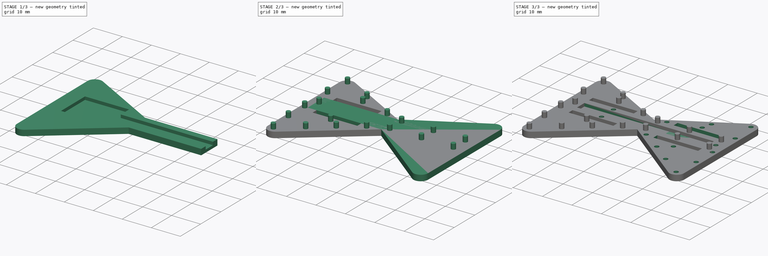
[diagram: build sequence overview — one tinted view per stage of 3, left to right]
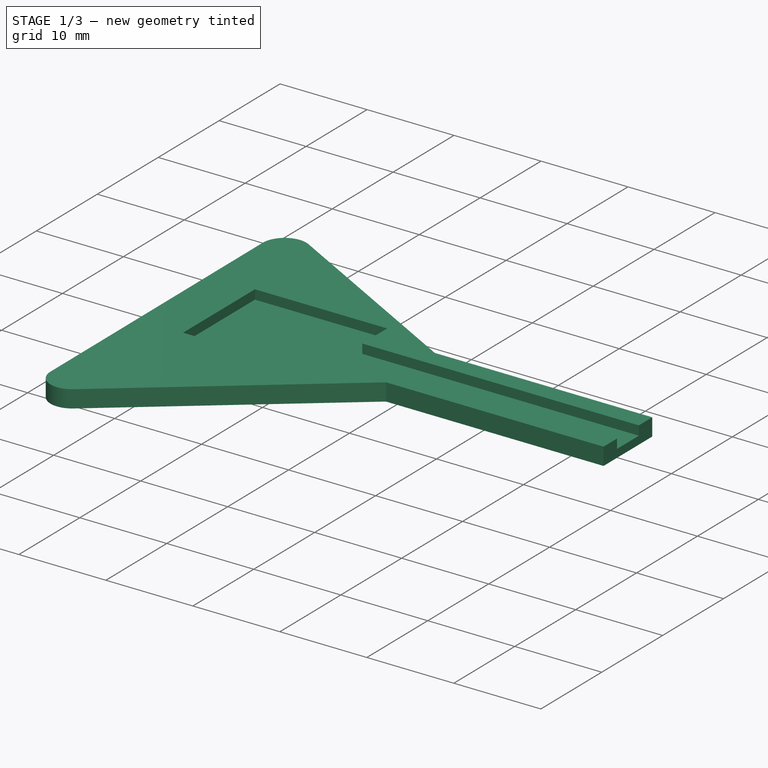
[diagram: stage 1 of 3 — iso view after this stage's code; geometry added in this stage tinted green]
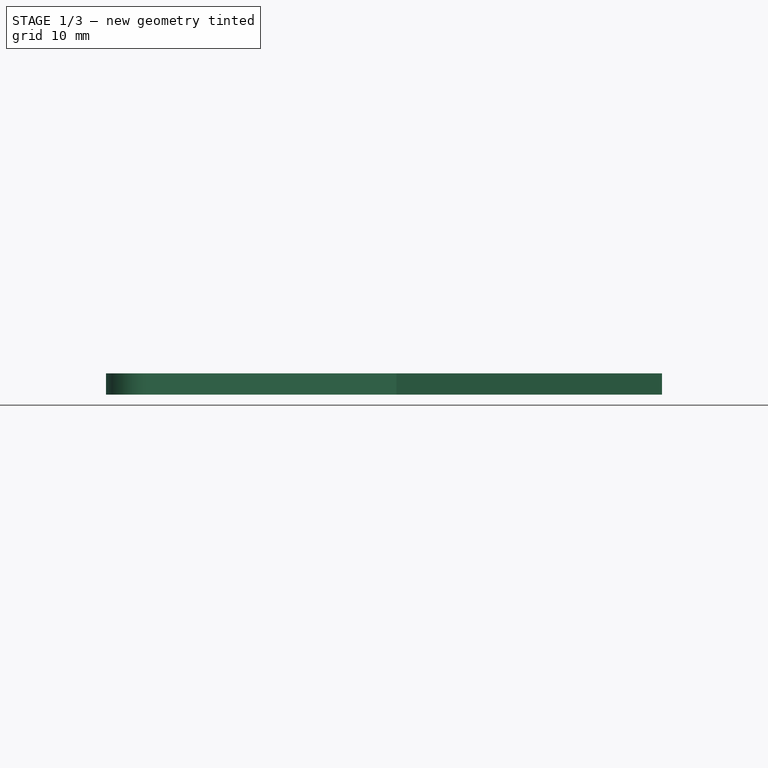
[diagram: stage 1 of 3 — front view after this stage's code; geometry added in this stage tinted green]
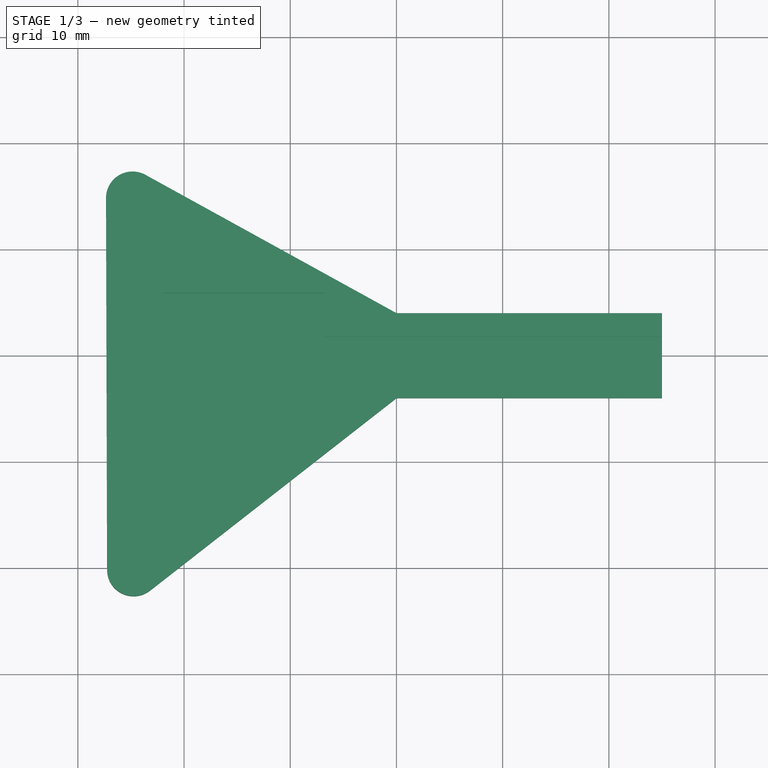
[diagram: stage 1 of 3 — top view after this stage's code; geometry added in this stage tinted green]
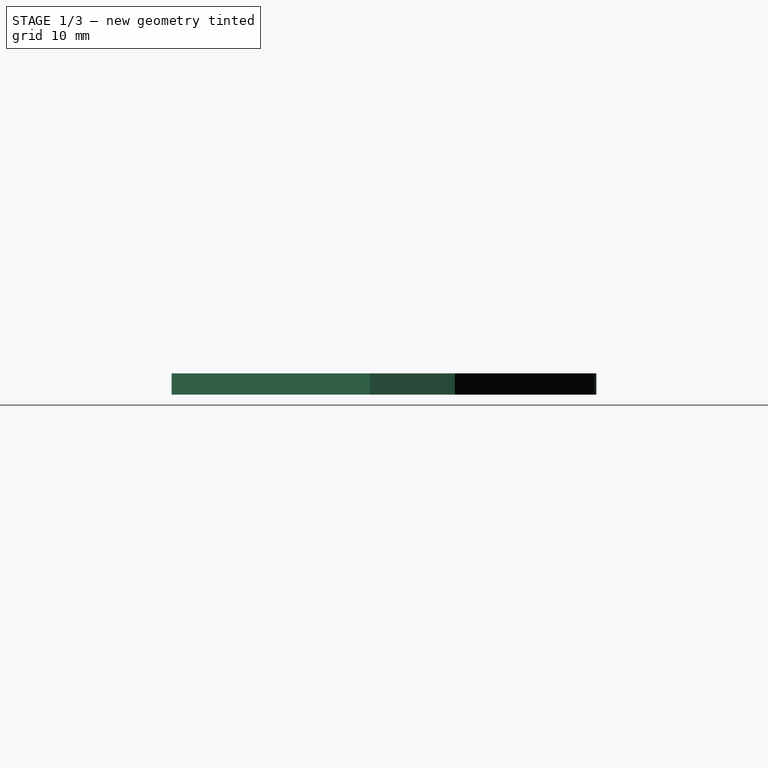
[diagram: stage 1 of 3 — right view after this stage's code; geometry added in this stage tinted green]
FCSTD DOCUMENT  (FreeCAD 0.21R33771 (Git))
Label: Key1
License: All rights reserved
LicenseURL: http://en.wikipedia.org/wiki/All_rights_reserved
objects: Sketcher::SketchObject×6, PartDesign::Pad×3, PartDesign::Pocket×3, PartDesign::Body×2, App::Part×2, Spreadsheet::Sheet×1
note: 20 computed .brp shape members not serialized (recipe doc carries the construction recipe); baked Part::Feature solids carry a one-line shape summary decoded from their .brp

FEATURE [PartDesign::Body] Body  label="KeyBody"
  Group = -> [Sketch,Pad,Sketch001,Pocket,Sketch002,Pocket001]
  Origin = -> Origin001
  Tip = -> Pocket001
FEATURE [App::Part] Part  label="KeyPart"
  Group = -> [Body]
  Origin = -> Origin
FEATURE [Sketcher::SketchObject] MirroredSketch
  FullyConstrained = true
  sketch-geometry (8):
    g0: LineSegment StartX=0.00428513 StartY=4 StartZ=0 EndX=25.0043 EndY=4 EndZ=0
    g1: LineSegment StartX=25.0043 StartY=4 StartZ=0 EndX=25.0043 EndY=-4 EndZ=0
    g2: LineSegment StartX=25.0043 StartY=-4 StartZ=0 EndX=-0.00290073 EndY=-4 EndZ=0
    g3: LineSegment StartX=0.00428513 StartY=4 StartZ=0 EndX=-23.6435 EndY=17.03 EndZ=0
    g4: ArcOfCircle CenterX=-24.85 CenterY=14.8404 CenterZ=0 NormalX=0 NormalY=0 NormalZ=1 AngleXU=0 Radius=2.5 StartAngle=1.06718 EndAngle=3.14445
    g5: LineSegment StartX=-27.35 StartY=14.8332 StartZ=0 EndX=-27.25 EndY=-20.1668 EndZ=0
    g6: ArcOfCircle CenterX=-24.75 CenterY=-20.1596 CenterZ=0 NormalX=0 NormalY=0 NormalZ=1 AngleXU=0 Radius=2.5 StartAngle=3.14445 EndAngle=5.37555
    g7: LineSegment StartX=-23.211 StartY=-22.1297 StartZ=0 EndX=-0.00290073 EndY=-4 EndZ=0
  constraints (22):
    c: Horizontal(g0)
    c: Coincident(g0,g1)
    c: Vertical(g1)
    c: Coincident(g1,g2)
    c: Horizontal(g2)
    c: Coincident(g3,g0)
    c: Distance(g3) = 27
    c: Tangent(g3,g4) = -1.5708
    c: Tangent(g4,g5) = -1.5708
    c: Tangent(g5,g6) = -1.5708
    c: Tangent(g6,g7) = -1.5708
    c: Diameter(g4) = 5
    c: Diameter(g6) = 5
    c: Coincident(g7,g2)
    c: Distance(g7) = 29.45
    c: DistanceY(g5,g5) = 35
    c: DistanceY(g-1,g3) = 17.03
    c: DistanceY(g1,g1) = 8
    c: DistanceY(g-1,g0) = 4
    c: DistanceX(g0,g0) = 25
    c: DistanceX(g4,g-1) = 27.35
    c: DistanceX(g5,g-1) = 27.25
FEATURE [PartDesign::Pad] Pad001  label="BasePad2"
  Direction = (0,0,1)
  Length = 2
  Length2 = 10
  Profile = -> MirroredSketch
  ReferenceAxis = -> MirroredSketch [N_Axis]
  Type = 0
  expr: Length = <<p>>.key_thickness / 2
FEATURE [Sketcher::SketchObject] MirroredSketch001
  FullyConstrained = true
  MapMode = 5
  Placement = pos=(0,0,2) rot=(0,0,1;0rad)
  Support = -> [Pad001]
  sketch-geometry (8):
    g0: LineSegment StartX=-6.8 StartY=5.9 StartZ=0 EndX=-22 EndY=5.9 EndZ=0
    g1: LineSegment StartX=-22 StartY=5.9 StartZ=0 EndX=-22 EndY=-5.9 EndZ=0
    g2: LineSegment StartX=-22 StartY=-5.9 StartZ=0 EndX=-6.8 EndY=-5.9 EndZ=0
    g3: LineSegment StartX=-6.8 StartY=5.9 StartZ=0 EndX=-6.8 EndY=1.8 EndZ=0
    g4: LineSegment StartX=-6.8 StartY=1.8 StartZ=0 EndX=25.01 EndY=1.8 EndZ=0
    g5: LineSegment StartX=25.01 StartY=1.8 StartZ=0 EndX=25.01 EndY=-1.8 EndZ=0
    g6: LineSegment StartX=25.01 StartY=-1.8 StartZ=0 EndX=-6.8 EndY=-1.8 EndZ=0
    g7: LineSegment StartX=-6.8 StartY=-1.8 StartZ=0 EndX=-6.8 EndY=-5.9 EndZ=0
  constraints (24):
    c: Coincident(g0,g1)
    c: Coincident(g1,g2)
    c: Horizontal(g0)
    c: Horizontal(g2)
    c: Vertical(g1)
    c: Vertical(g3)
    c: Coincident(g3,g4)
    c: Horizontal(g4)
    c: Coincident(g4,g5)
    c: Vertical(g5)
    c: Coincident(g5,g6)
    c: Horizontal(g6)
    c: Coincident(g6,g7)
    c: Coincident(g7,g2)
    c: Vertical(g7)
    c: Coincident(g0,g3)
    c: DistanceX(g3,g-1) = 6.8
    c: DistanceX(g6,g-1) = 6.8
    c: DistanceX(g-1,g4) = 25.01
    c: DistanceX(g0,g-1) = 22
    c: DistanceY(g-1,g0) = 5.9
    c: DistanceY(g-1,g3) = 1.8
    c: DistanceY(g6,g-1) = 1.8
    c: DistanceY(g2,g-1) = 5.9
FEATURE [PartDesign::Pocket] Pocket002  label="TouchPocket001"
  BaseFeature = -> Pad001
  Direction = (0,0,-1)
  Length = 1.075
  Length2 = 5
  Profile = -> MirroredSketch001
  ReferenceAxis = -> MirroredSketch001 [N_Axis]
  Type = 0
  expr: Length = <<p>>.touch_depth / 2
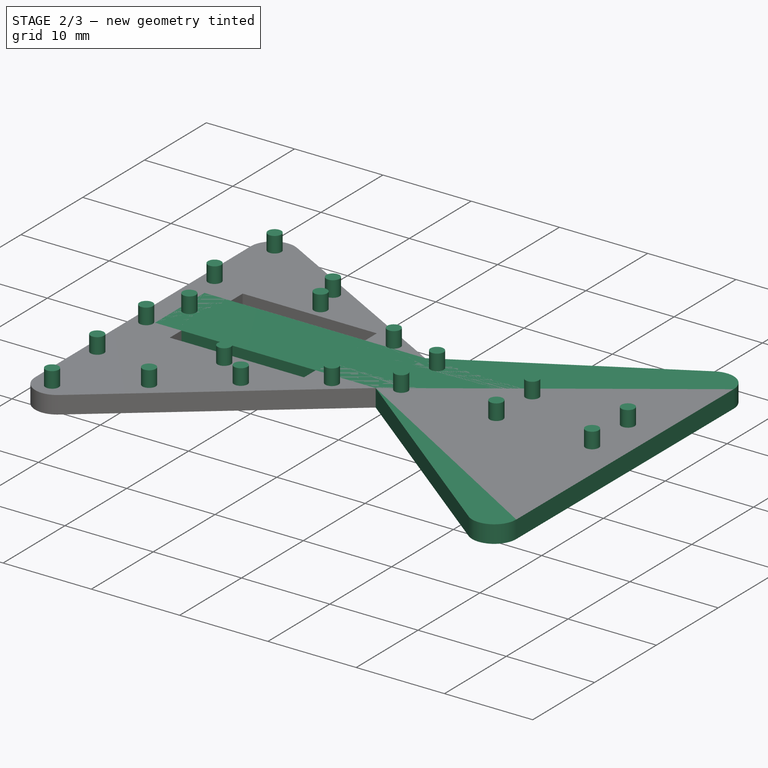
[diagram: stage 2 of 3 — iso view after this stage's code; geometry added in this stage tinted green]
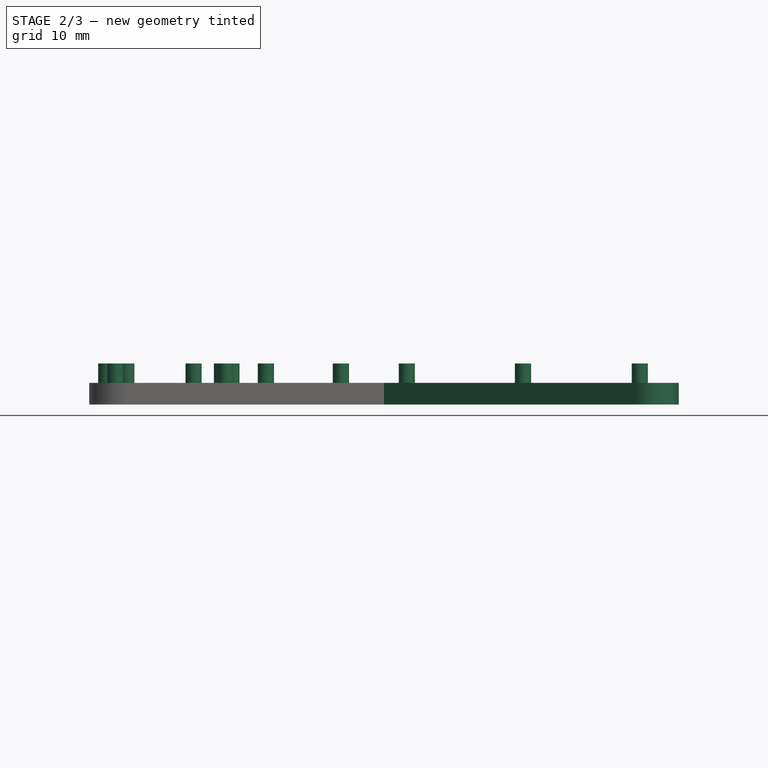
[diagram: stage 2 of 3 — front view after this stage's code; geometry added in this stage tinted green]
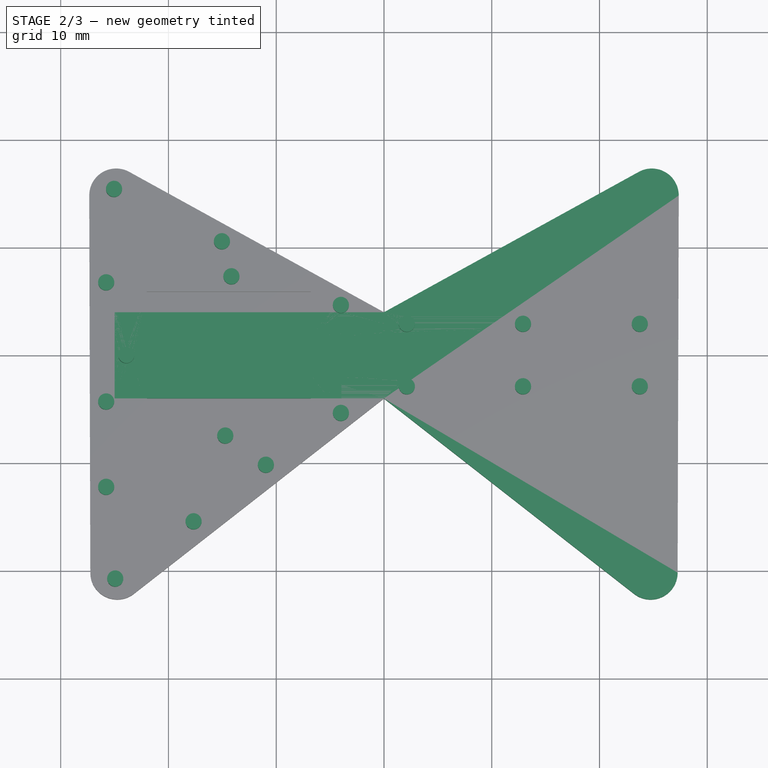
[diagram: stage 2 of 3 — top view after this stage's code; geometry added in this stage tinted green]
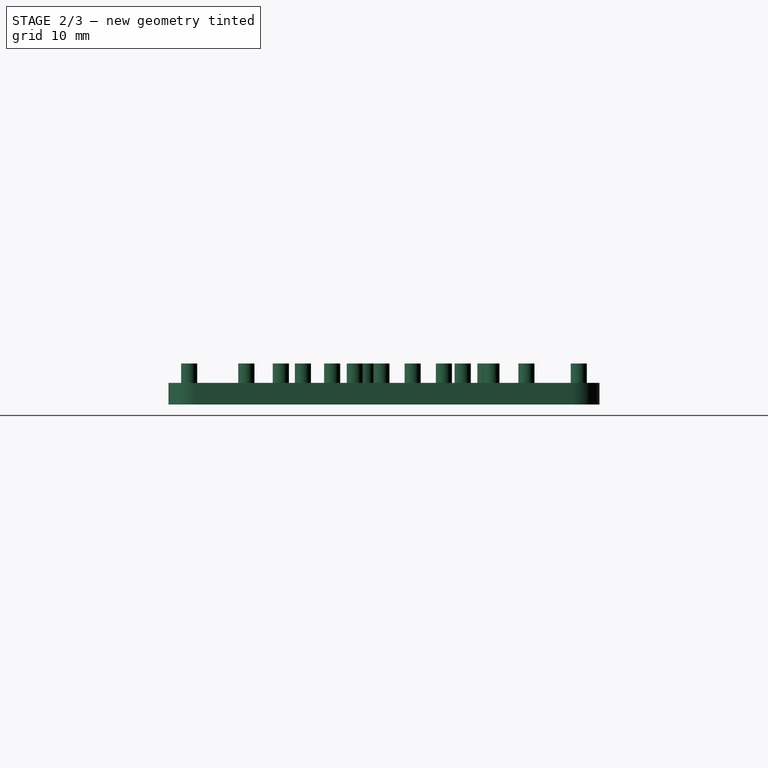
[diagram: stage 2 of 3 — right view after this stage's code; geometry added in this stage tinted green]
FEATURE [Spreadsheet::Sheet] Spreadsheet  label="p"
  cells = A1='key_thickness; B1(key_thickness)=4; A2='touch_width; B2(touch_width)=15.2; A3='touch_length; B3(touch_length)=11.8; A4='touch_depth; B4(touch_depth)=2.15; A6='pin_diameter; B6(pin_diameter)=1.5; A7='pin_depth; B7(pin_depth)=1.8
FEATURE [Sketcher::SketchObject] Sketch
  FullyConstrained = true
  MapMode = 5
  Support = -> [XY_Plane001]
  sketch-geometry (8):
    g0: LineSegment StartX=0 StartY=4 StartZ=0 EndX=-25 EndY=4 EndZ=0
    g1: LineSegment StartX=-25 StartY=4 StartZ=0 EndX=-25 EndY=-4 EndZ=0
    g2: LineSegment StartX=-25 StartY=-4 StartZ=0 EndX=0 EndY=-4 EndZ=0
    g3: LineSegment StartX=0 StartY=4 StartZ=0 EndX=23.6478 EndY=17.03 EndZ=0
    g4: ArcOfCircle CenterX=24.8543 CenterY=14.8404 CenterZ=0 NormalX=0 NormalY=0 NormalZ=1 AngleXU=0 Radius=2.5 StartAngle=6.28012 EndAngle=8.35759
    g5: LineSegment StartX=27.3543 StartY=14.8327 StartZ=0 EndX=27.2471 EndY=-20.1673 EndZ=0
    g6: ArcOfCircle CenterX=24.7471 CenterY=-20.1596 CenterZ=0 NormalX=0 NormalY=0 NormalZ=1 AngleXU=0 Radius=2.5 StartAngle=4.04923 EndAngle=6.28012
    g7: LineSegment StartX=23.2081 StartY=-22.1297 StartZ=0 EndX=0 EndY=-4 EndZ=0
  constraints (22):
    c: PointOnObject(g0,g-2)
    c: Horizontal(g0)
    c: Coincident(g0,g1)
    c: Vertical(g1)
    c: Coincident(g1,g2)
    c: PointOnObject(g2,g-2)
    c: Horizontal(g2)
    c: DistanceX(g0,g0) = 25
    c: DistanceY(g1,g1) = 8
    c: DistanceY(g-1,g0) = 4
    c: Coincident(g3,g0)
    c: Distance(g3) = 27
    c: DistanceY(g-1,g3) = 17.03
    c: Tangent(g3,g4) = 1.5708
    c: Tangent(g4,g5) = 1.5708
    c: DistanceY(g5,g5) = 35
    c: Tangent(g5,g6) = 1.5708
    c: Tangent(g6,g7) = 1.5708
    c: Diameter(g4) = 5
    c: Diameter(g6) = 5
    c: Coincident(g7,g2)
    c: Distance(g7) = 29.45
FEATURE [PartDesign::Pad] Pad  label="BasePad"
  Direction = (0,0,1)
  Length = 2
  Length2 = 10
  Profile = -> Sketch
  ReferenceAxis = -> Sketch [N_Axis]
  Type = 0
  expr: Length = <<p>>.key_thickness / 2
FEATURE [Sketcher::SketchObject] MirroredSketch002
  FullyConstrained = true
  MapMode = 5
  Placement = pos=(0,0,2) rot=(0,0,1;0rad)
  Support = -> [Pocket002]
  sketch-geometry (19):
    g0: Circle CenterX=23.74 CenterY=2.9 CenterZ=0 NormalX=0 NormalY=0 NormalZ=1 AngleXU=0 Radius=0.75
    g1: Circle CenterX=23.74 CenterY=-2.9 CenterZ=0 NormalX=0 NormalY=0 NormalZ=1 AngleXU=0 Radius=0.75
    g2: Circle CenterX=12.9 CenterY=2.9 CenterZ=0 NormalX=0 NormalY=0 NormalZ=1 AngleXU=0 Radius=0.75
    g3: Circle CenterX=2.12 CenterY=2.9 CenterZ=0 NormalX=0 NormalY=0 NormalZ=1 AngleXU=0 Radius=0.75
    g4: Circle CenterX=2.12 CenterY=-2.9 CenterZ=0 NormalX=0 NormalY=0 NormalZ=1 AngleXU=0 Radius=0.75
    g5: Circle CenterX=12.9 CenterY=-2.9 CenterZ=0 NormalX=0 NormalY=0 NormalZ=1 AngleXU=0 Radius=0.75
    g6: Circle CenterX=-4 CenterY=4.65 CenterZ=0 NormalX=0 NormalY=0 NormalZ=1 AngleXU=0 Radius=0.75
    g7: Circle CenterX=-4 CenterY=-5.37 CenterZ=0 NormalX=0 NormalY=0 NormalZ=1 AngleXU=0 Radius=0.75
    g8: Circle CenterX=-14.73 CenterY=-7.47 CenterZ=0 NormalX=0 NormalY=0 NormalZ=1 AngleXU=0 Radius=0.75
    g9: Circle CenterX=-14.16 CenterY=7.31 CenterZ=0 NormalX=0 NormalY=0 NormalZ=1 AngleXU=0 Radius=0.75
    g10: Circle CenterX=-23.91 CenterY=0 CenterZ=0 NormalX=0 NormalY=0 NormalZ=1 AngleXU=0 Radius=0.75
    g11: Circle CenterX=-15.04 CenterY=10.56 CenterZ=0 NormalX=0 NormalY=0 NormalZ=1 AngleXU=0 Radius=0.75
    g12: Circle CenterX=-25.05 CenterY=15.42 CenterZ=0 NormalX=0 NormalY=0 NormalZ=1 AngleXU=0 Radius=0.75
    g13: Circle CenterX=-25.78 CenterY=6.75 CenterZ=0 NormalX=0 NormalY=0 NormalZ=1 AngleXU=0 Radius=0.75
    g14: Circle CenterX=-25.78 CenterY=-4.31 CenterZ=0 NormalX=0 NormalY=0 NormalZ=1 AngleXU=0 Radius=0.75
    g15: Circle CenterX=-25.78 CenterY=-12.23 CenterZ=0 NormalX=0 NormalY=0 NormalZ=1 AngleXU=0 Radius=0.75
    g16: Circle CenterX=-24.94 CenterY=-20.74 CenterZ=0 NormalX=0 NormalY=0 NormalZ=1 AngleXU=0 Radius=0.75
    g17: Circle CenterX=-17.67 CenterY=-15.43 CenterZ=0 NormalX=0 NormalY=0 NormalZ=1 AngleXU=0 Radius=0.75
    g18: Circle CenterX=-10.96 CenterY=-10.18 CenterZ=0 NormalX=0 NormalY=0 NormalZ=1 AngleXU=0 Radius=0.75
  constraints (40):
    c: Equal(g0, g1-g18) x18
    c: Diameter(g0) = 1.5
    c: DistanceY(g-1,g3) = 2.9
    c: DistanceY(g-1,g2) = 2.9
    c: DistanceY(g-1,g0) = 2.9
    c: DistanceY(g4,g-1) = 2.9
    c: DistanceY(g5,g-1) = 2.9
    c: DistanceY(g1,g-1) = 2.9
    c: DistanceY(g-1,g6) = 4.65
    c: DistanceY(g-1,g9) = 7.31
    c: DistanceY(g-1,g11) = 10.56
    c: DistanceY(g-1,g12) = 15.42
    c: DistanceY(g-1,g13) = 6.75
    c: DistanceY(g7,g-1) = 5.37
    c: DistanceY(g18,g-1) = 10.18
    c: DistanceY(g8,g-1) = 7.47
    c: DistanceY(g14,g-1) = 4.31
    c: DistanceY(g15,g-1) = 12.23
    c: DistanceY(g17,g-1) = 15.43
    c: DistanceY(g16,g-1) = 20.74
    c: DistanceX(g-1,g1) = 23.74
    c: DistanceX(g-1,g0) = 23.74
    c: DistanceX(g-1,g2) = 12.9
    c: DistanceX(g-1,g3) = 2.12
    c: DistanceX(g-1,g5) = 12.9
    c: DistanceX(g-1,g4) = 2.12
    c: DistanceX(g6,g-1) = 4
    c: DistanceX(g7,g-1) = 4
    c: DistanceX(g9,g-1) = 14.16
    c: DistanceX(g11,g-1) = 15.04
    c: DistanceX(g18,g-1) = 10.96
    c: DistanceX(g8,g-1) = 14.73
    c: DistanceX(g17,g-1) = 17.67
    c: DistanceX(g16,g-1) = 24.94
    c: DistanceX(g15,g-1) = 25.78
    c: DistanceX(g14,g-1) = 25.78
    c: DistanceX(g10,g-1) = 23.91
    c: DistanceX(g13,g-1) = 25.78
    c: DistanceX(g12,g-1) = 25.05
    c: DistanceY(g10,g-1) = 0
FEATURE [PartDesign::Pad] Pad002  label="PinPads"
  BaseFeature = -> Pocket002
  Direction = (0,0,1)
  Length = 1.8
  Length2 = 10
  Profile = -> MirroredSketch002
  ReferenceAxis = -> MirroredSketch002 [N_Axis]
  Type = 0
  expr: Length = <<p>>.pin_depth
FEATURE [PartDesign::Body] Body001  label="KeyBody2"
  Group = -> [MirroredSketch,Pad001,MirroredSketch001,Pocket002,MirroredSketch002,Pad002]
  Origin = -> Origin003
  Tip = -> Pad002
FEATURE [App::Part] Part001  label="KeyPart2"
  Group = -> [Body001]
  Origin = -> Origin002
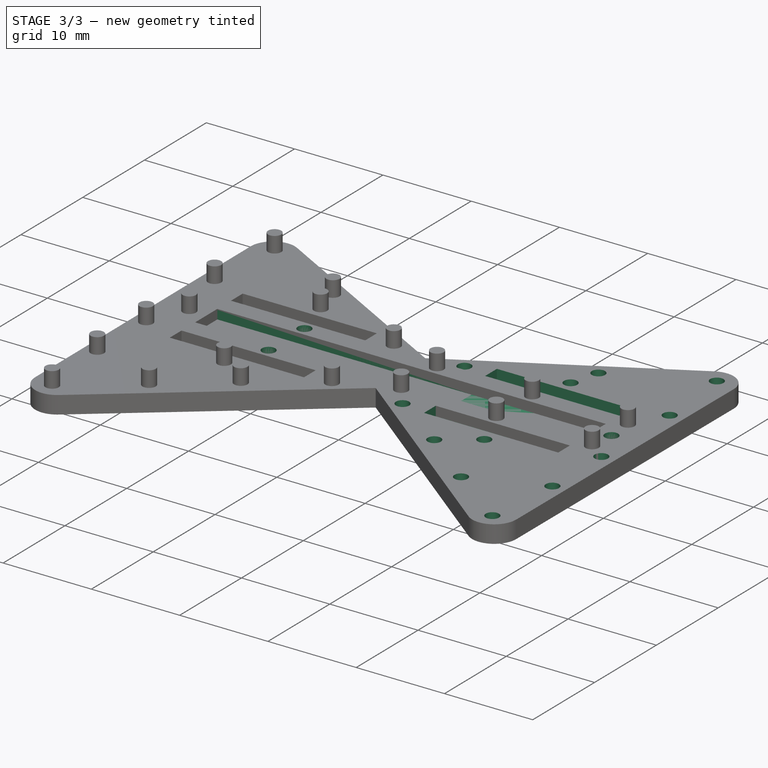
[diagram: stage 3 of 3 — iso view after this stage's code; geometry added in this stage tinted green]
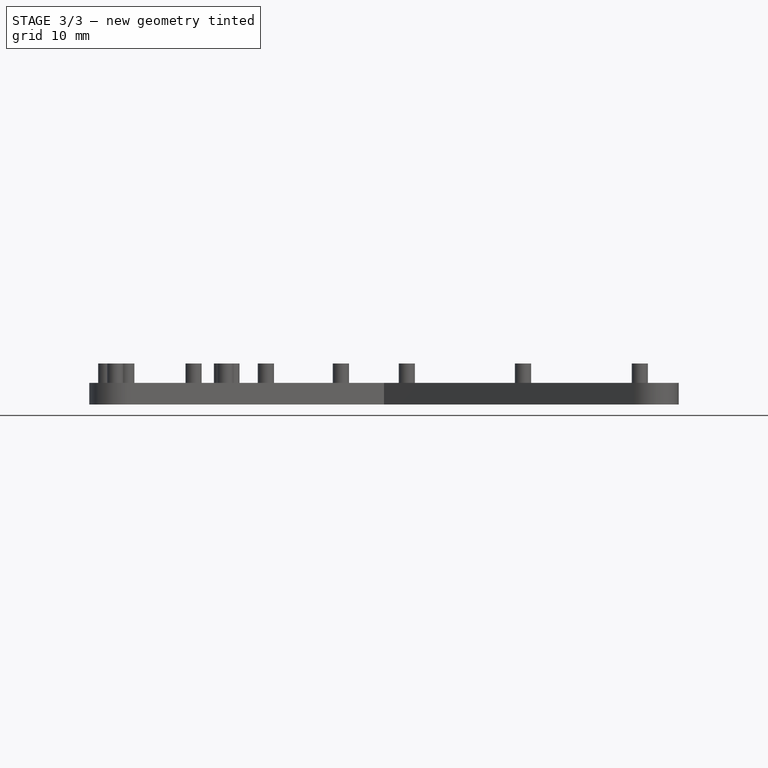
[diagram: stage 3 of 3 — front view after this stage's code; geometry added in this stage tinted green]
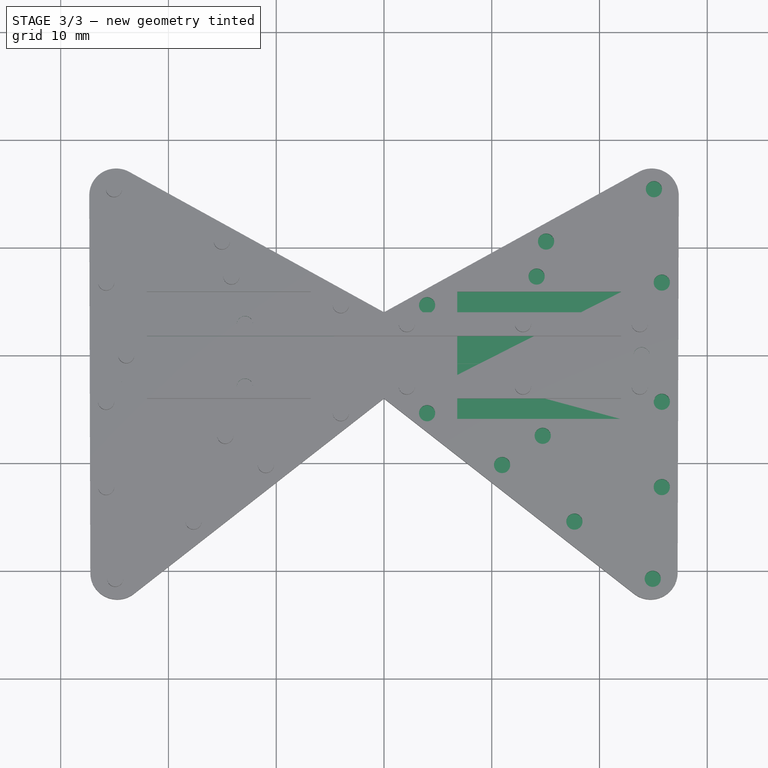
[diagram: stage 3 of 3 — top view after this stage's code; geometry added in this stage tinted green]
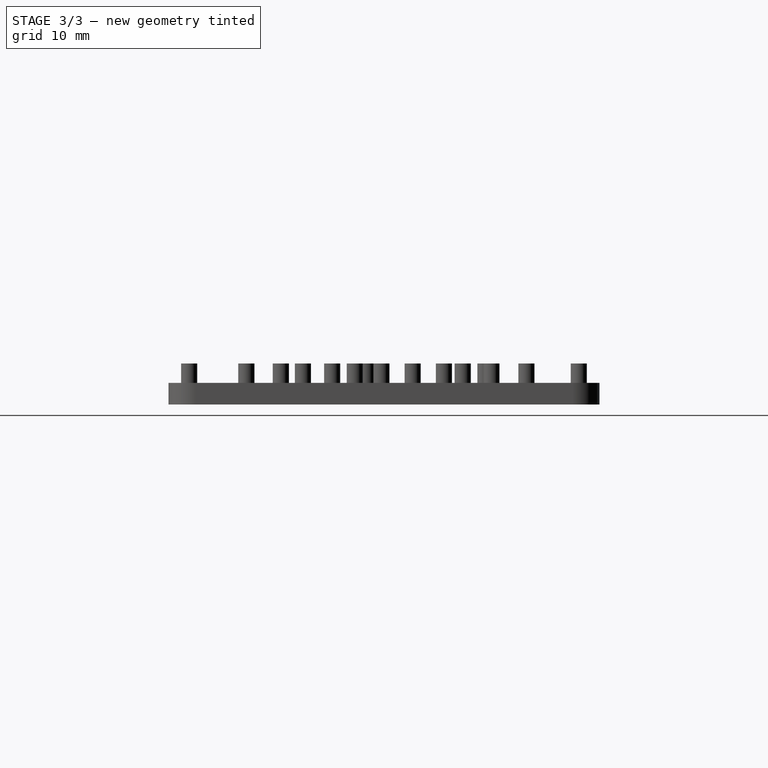
[diagram: stage 3 of 3 — right view after this stage's code; geometry added in this stage tinted green]
FEATURE [Sketcher::SketchObject] Sketch001
  FullyConstrained = true
  MapMode = 5
  Placement = pos=(0,0,2) rot=(0,0,1;0rad)
  Support = -> [Pad]
  expr: Constraints[5] = <<p>>.touch_width
  expr: Constraints[6] = <<p>>.touch_length
  expr: Constraints[7] = <<p>>.touch_length / 2
  sketch-geometry (8):
    g0: LineSegment StartX=6.8 StartY=5.9 StartZ=0 EndX=22 EndY=5.9 EndZ=0
    g1: LineSegment StartX=22 StartY=5.9 StartZ=0 EndX=22 EndY=-5.9 EndZ=0
    g2: LineSegment StartX=22 StartY=-5.9 StartZ=0 EndX=6.8 EndY=-5.9 EndZ=0
    g3: LineSegment StartX=6.8 StartY=5.9 StartZ=0 EndX=6.8 EndY=1.8 EndZ=0
    g4: LineSegment StartX=6.8 StartY=1.8 StartZ=0 EndX=-25.01 EndY=1.8 EndZ=0
    g5: LineSegment StartX=-25.01 StartY=1.8 StartZ=0 EndX=-25.01 EndY=-1.8 EndZ=0
    g6: LineSegment StartX=-25.01 StartY=-1.8 StartZ=0 EndX=6.8 EndY=-1.8 EndZ=0
    g7: LineSegment StartX=6.8 StartY=-1.8 StartZ=0 EndX=6.8 EndY=-5.9 EndZ=0
  constraints (24):
    c: Coincident(g0,g1)
    c: Coincident(g1,g2)
    c: Horizontal(g0)
    c: Horizontal(g2)
    c: Vertical(g1)
    c: DistanceX(g0,g0) = 15.2
    c: DistanceY(g1,g1) = 11.8
    c: DistanceY(g-1,g0) = 5.9
    c: DistanceX(g-1,g2) = 6.8
    c: Vertical(g3)
    c: Coincident(g3,g4)
    c: Horizontal(g4)
    c: Coincident(g4,g5)
    c: Vertical(g5)
    c: Coincident(g5,g6)
    c: Horizontal(g6)
    c: Coincident(g6,g7)
    c: Coincident(g7,g2)
    c: Vertical(g7)
    c: Coincident(g0,g3)
    c: DistanceX(g-1,g0) = 6.8
    c: DistanceY(g-1,g3) = 1.8
    c: DistanceY(g6,g-1) = 1.8
    c: DistanceX(g4,g4) = 31.81
FEATURE [PartDesign::Pocket] Pocket  label="TouchPocket"
  BaseFeature = -> Pad
  Direction = (0,0,-1)
  Length = 1.075
  Length2 = 5
  Profile = -> Sketch001
  ReferenceAxis = -> Sketch001 [N_Axis]
  Type = 0
  expr: Length = <<p>>.touch_depth / 2
FEATURE [Sketcher::SketchObject] Sketch002
  FullyConstrained = true
  MapMode = 5
  Placement = pos=(0,0,2) rot=(0,0,1;0rad)
  Support = -> [Pocket]
  expr: Constraints[19] = <<p>>.pin_diameter
  sketch-geometry (19):
    g0: Circle CenterX=-23.74 CenterY=2.9 CenterZ=0 NormalX=0 NormalY=0 NormalZ=1 AngleXU=0 Radius=0.75
    g1: Circle CenterX=-23.74 CenterY=-2.9 CenterZ=0 NormalX=0 NormalY=0 NormalZ=1 AngleXU=0 Radius=0.75
    g2: Circle CenterX=-12.9 CenterY=2.9 CenterZ=0 NormalX=0 NormalY=0 NormalZ=1 AngleXU=0 Radius=0.75
    g3: Circle CenterX=-2.12 CenterY=2.9 CenterZ=0 NormalX=0 NormalY=0 NormalZ=1 AngleXU=0 Radius=0.75
    g4: Circle CenterX=-2.12 CenterY=-2.9 CenterZ=0 NormalX=0 NormalY=0 NormalZ=1 AngleXU=0 Radius=0.75
    g5: Circle CenterX=-12.9 CenterY=-2.9 CenterZ=0 NormalX=0 NormalY=0 NormalZ=1 AngleXU=0 Radius=0.75
    g6: Circle CenterX=4 CenterY=4.65 CenterZ=0 NormalX=0 NormalY=0 NormalZ=1 AngleXU=0 Radius=0.75
    g7: Circle CenterX=4 CenterY=-5.37 CenterZ=0 NormalX=0 NormalY=0 NormalZ=1 AngleXU=0 Radius=0.75
    g8: Circle CenterX=14.73 CenterY=-7.47 CenterZ=0 NormalX=0 NormalY=0 NormalZ=1 AngleXU=0 Radius=0.75
    g9: Circle CenterX=14.16 CenterY=7.31 CenterZ=0 NormalX=0 NormalY=0 NormalZ=1 AngleXU=0 Radius=0.75
    g10: Circle CenterX=23.91 CenterY=0 CenterZ=0 NormalX=0 NormalY=0 NormalZ=1 AngleXU=0 Radius=0.75
    g11: Circle CenterX=15.04 CenterY=10.56 CenterZ=0 NormalX=0 NormalY=0 NormalZ=1 AngleXU=0 Radius=0.75
    g12: Circle CenterX=25.05 CenterY=15.42 CenterZ=0 NormalX=0 NormalY=0 NormalZ=1 AngleXU=0 Radius=0.75
    g13: Circle CenterX=25.78 CenterY=6.75 CenterZ=0 NormalX=0 NormalY=0 NormalZ=1 AngleXU=0 Radius=0.75
    g14: Circle CenterX=25.78 CenterY=-4.31 CenterZ=0 NormalX=0 NormalY=0 NormalZ=1 AngleXU=0 Radius=0.75
    g15: Circle CenterX=25.78 CenterY=-12.23 CenterZ=0 NormalX=0 NormalY=0 NormalZ=1 AngleXU=0 Radius=0.75
    g16: Circle CenterX=24.94 CenterY=-20.74 CenterZ=0 NormalX=0 NormalY=0 NormalZ=1 AngleXU=0 Radius=0.75
    g17: Circle CenterX=17.67 CenterY=-15.43 CenterZ=0 NormalX=0 NormalY=0 NormalZ=1 AngleXU=0 Radius=0.75
    g18: Circle CenterX=10.96 CenterY=-10.18 CenterZ=0 NormalX=0 NormalY=0 NormalZ=1 AngleXU=0 Radius=0.75
  constraints (40):
    c: PointOnObject(g10,g-1)
    c: Equal(g0, g1-g18) x18
    c: Diameter(g0) = 1.5
    c: DistanceY(g-1,g0) = 2.9
    c: DistanceY(g1,g-1) = 2.9
    c: DistanceY(g5,g-1) = 2.9
    c: DistanceY(g4,g-1) = 2.9
    c: DistanceY(g-1,g3) = 2.9
    c: DistanceY(g-1,g2) = 2.9
    c: DistanceX(g0,g-1) = 23.74
    c: DistanceX(g1,g-1) = 23.74
    c: DistanceX(g2,g-1) = 12.9
    c: DistanceX(g5,g-1) = 12.9
    c: DistanceX(g3,g-1) = 2.12
    c: DistanceX(g4,g-1) = 2.12
    c: DistanceX(g-1,g6) = 4
    c: DistanceX(g-1,g7) = 4
    c: DistanceX(g-1,g9) = 14.16
    c: DistanceX(g-1,g10) = 23.91
    c: DistanceX(g-1,g11) = 15.04
    c: DistanceX(g-1,g12) = 25.05
    c: DistanceX(g-1,g13) = 25.78
    c: DistanceX(g-1,g14) = 25.78
    c: DistanceX(g-1,g15) = 25.78
    c: DistanceX(g-1,g18) = 10.96
    c: DistanceX(g-1,g8) = 14.73
    c: DistanceX(g-1,g17) = 17.67
    c: DistanceX(g-1,g16) = 24.94
    c: DistanceY(g-1,g6) = 4.65
    c: DistanceY(g7,g-1) = 5.37
    c: DistanceY(g-1,g9) = 7.31
    c: DistanceY(g-1,g11) = 10.56
    c: DistanceY(g8,g-1) = 7.47
    c: DistanceY(g18,g-1) = 10.18
    c: DistanceY(g17,g-1) = 15.43
    c: DistanceY(g16,g-1) = 20.74
    c: DistanceY(g15,g-1) = 12.23
    c: DistanceY(g14,g-1) = 4.31
    c: DistanceY(g-1,g13) = 6.75
    c: DistanceY(g-1,g12) = 15.42
FEATURE [PartDesign::Pocket] Pocket001  label="PinPockets"
  BaseFeature = -> Pocket
  Direction = (0,0,-1)
  Length = 1.8
  Length2 = 5
  Profile = -> Sketch002
  ReferenceAxis = -> Sketch002 [N_Axis]
  Type = 0
  expr: Length = <<p>>.pin_depth
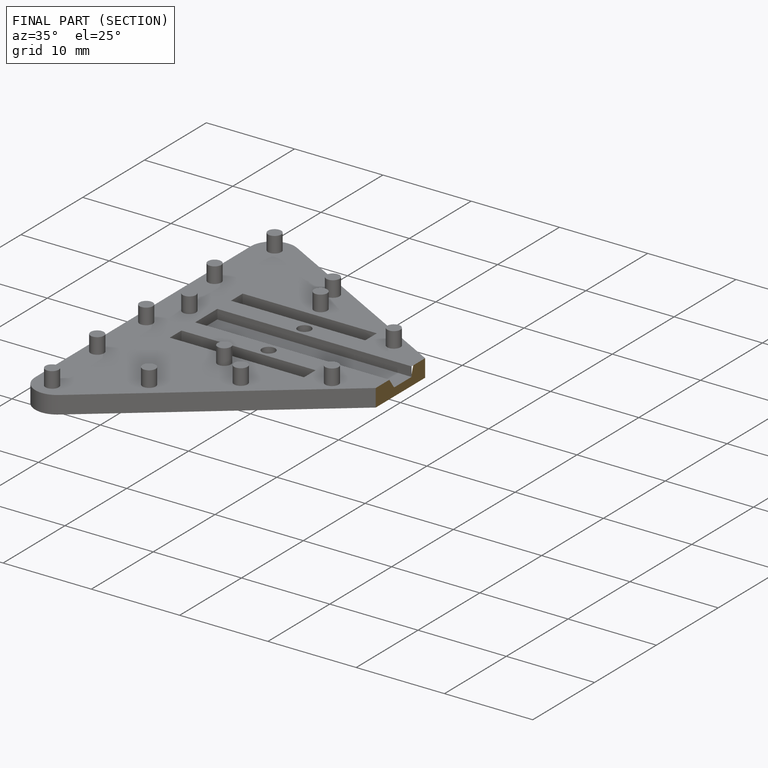
[diagram: finished part — half-section view (interior)]
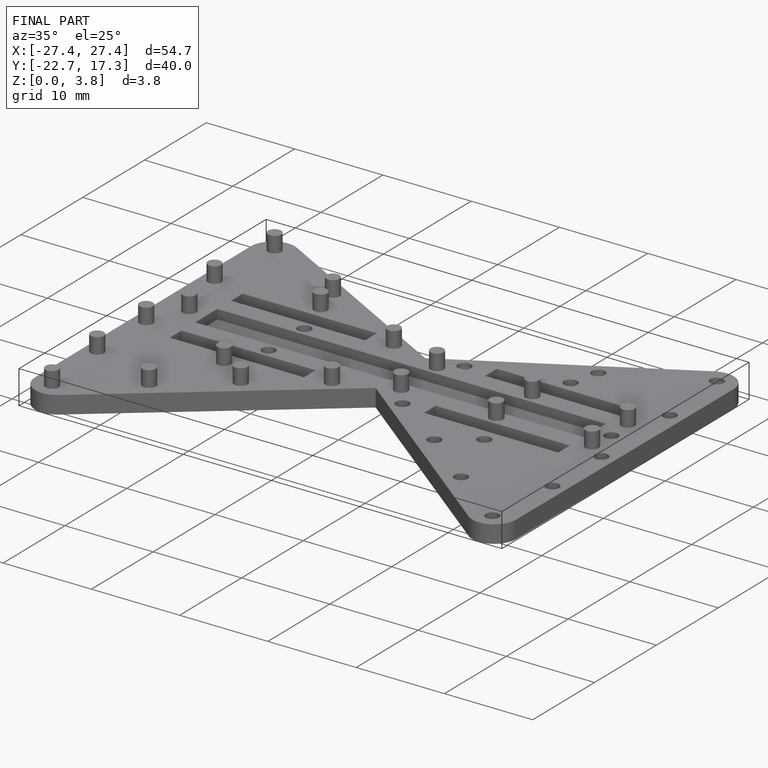
[diagram: finished part — iso view with bounding-box wireframe]
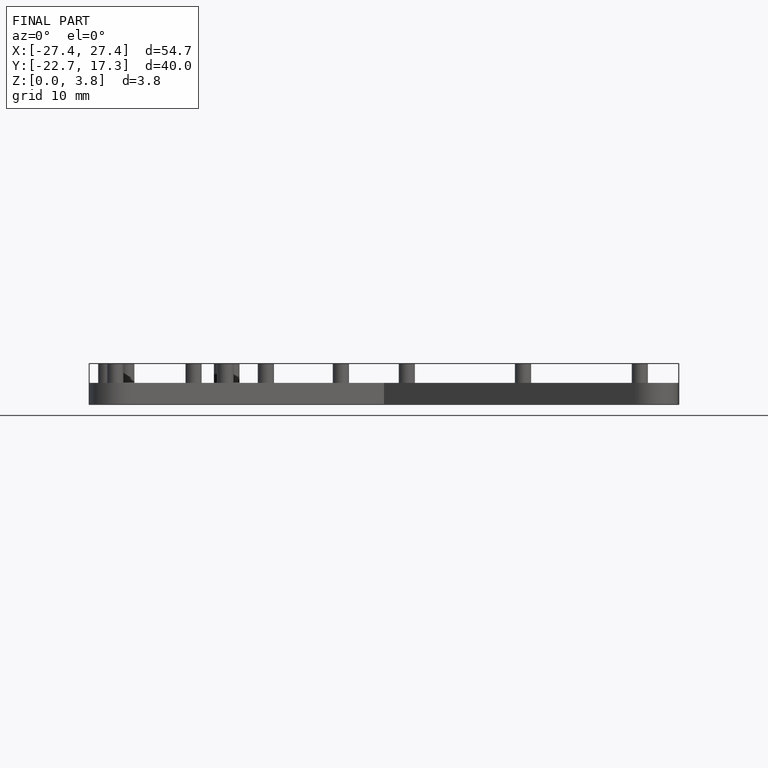
[diagram: finished part — front view with bounding-box wireframe]
